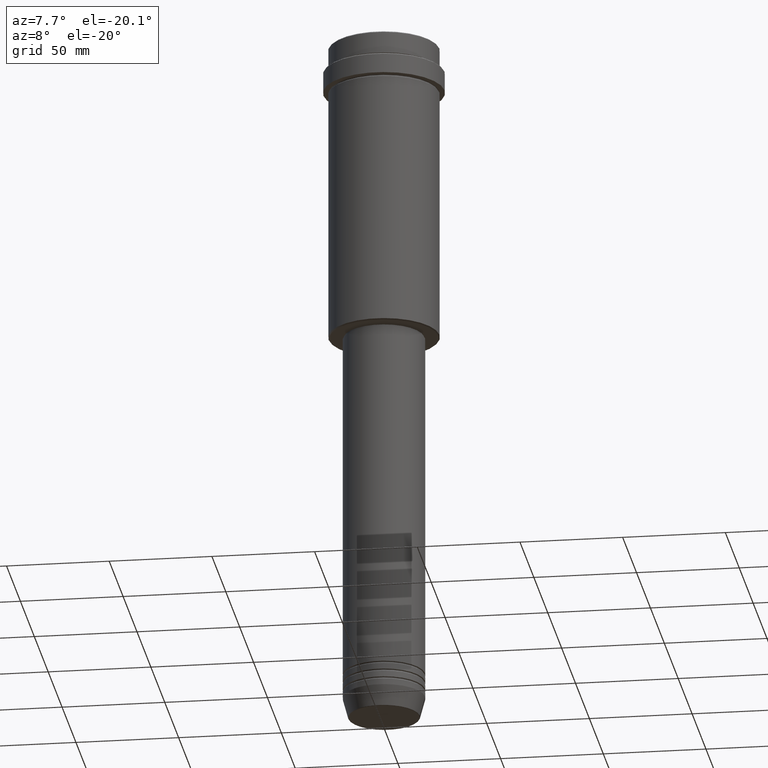
[diagram: clean part render]
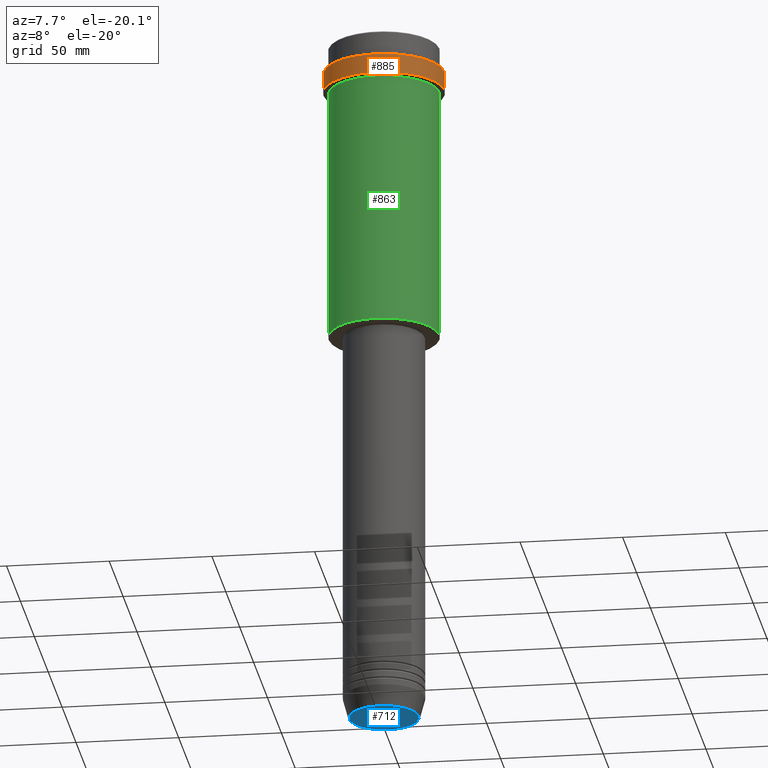
[diagram: same view with three faces highlighted in distinct colors, each labeled with its STEP entity id]
A machine part, auxiliary view with three faces highlighted in distinct colors.
Their STEP definitions:

[orange] entity #885 — the highlighted cylindrical surface (partial cylindrical patch) has radius 29.5 mm, axis along (-0, -0, 1).
#50 = DIRECTION ( 'NONE',  ( 1.000000000000000000, 0.000000000000000000, 0.000000000000000000 ) ) ;
#56 = CARTESIAN_POINT ( 'NONE',  ( 29.50000000000000000, 0.000000000000000000, -12.50000000000000355 ) ) ;
#59 = VECTOR ( 'NONE', #256, 1000.000000000000000 ) ;
#125 = CARTESIAN_POINT ( 'NONE',  ( -29.49999999999999645, 3.612708057484690815E-15, -22.00000000000000711 ) ) ;
#145 = LINE ( 'NONE', #1039, #59 ) ;
#169 = EDGE_LOOP ( 'NONE', ( #584, #867, #625, #930 ) ) ;
#199 = EDGE_CURVE ( 'NONE', #392, #777, #992, .T. ) ;
#212 = AXIS2_PLACEMENT_3D ( 'NONE', #908, #463, #1056 ) ;
#223 = CARTESIAN_POINT ( 'NONE',  ( -29.50000000000000000, 3.612708057484691604E-15, -12.50000000000000355 ) ) ;
#256 = DIRECTION ( 'NONE',  ( -0.000000000000000000, -0.000000000000000000, 1.000000000000000000 ) ) ;
#259 = CYLINDRICAL_SURFACE ( 'NONE', #381, 29.50000000000000000 ) ;
#284 = EDGE_CURVE ( 'NONE', #804, #379, #145, .T. ) ;
#318 = CARTESIAN_POINT ( 'NONE',  ( 29.49999999999999645, 0.000000000000000000, -22.00000000000000711 ) ) ;
#379 = VERTEX_POINT ( 'NONE', #223 ) ;
#381 = AXIS2_PLACEMENT_3D ( 'NONE', #701, #659, #624 ) ;
#392 = VERTEX_POINT ( 'NONE', #318 ) ;
#404 = CARTESIAN_POINT ( 'NONE',  ( 29.50000000000000000, 0.000000000000000000, 0.000000000000000000 ) ) ;
#463 = DIRECTION ( 'NONE',  ( -0.000000000000000000, -0.000000000000000000, 1.000000000000000000 ) ) ;
#522 = CIRCLE ( 'NONE', #212, 29.49999999999999645 ) ;
#577 = FACE_OUTER_BOUND ( 'NONE', #169, .T. ) ;
#584 = ORIENTED_EDGE ( 'NONE', *, *, #284, .F. ) ;
#624 = DIRECTION ( 'NONE',  ( 1.000000000000000000, 0.000000000000000000, 0.000000000000000000 ) ) ;
#625 = ORIENTED_EDGE ( 'NONE', *, *, #199, .T. ) ;
#659 = DIRECTION ( 'NONE',  ( -0.000000000000000000, -0.000000000000000000, 1.000000000000000000 ) ) ;
#670 = EDGE_CURVE ( 'NONE', #777, #379, #918, .T. ) ;
#687 = AXIS2_PLACEMENT_3D ( 'NONE', #1027, #915, #50 ) ;
#701 = CARTESIAN_POINT ( 'NONE',  ( 0.000000000000000000, 0.000000000000000000, 0.000000000000000000 ) ) ;
#777 = VERTEX_POINT ( 'NONE', #56 ) ;
#784 = VECTOR ( 'NONE', #960, 1000.000000000000000 ) ;
#804 = VERTEX_POINT ( 'NONE', #125 ) ;
#867 = ORIENTED_EDGE ( 'NONE', *, *, #1323, .T. ) ;
#885 = ADVANCED_FACE ( 'NONE', ( #577 ), #259, .T. ) ;
#908 = CARTESIAN_POINT ( 'NONE',  ( 0.000000000000000000, 0.000000000000000000, -22.00000000000000711 ) ) ;
#915 = DIRECTION ( 'NONE',  ( 0.000000000000000000, 0.000000000000000000, -1.000000000000000000 ) ) ;
#918 = CIRCLE ( 'NONE', #687, 29.50000000000000000 ) ;
#930 = ORIENTED_EDGE ( 'NONE', *, *, #670, .T. ) ;
#960 = DIRECTION ( 'NONE',  ( -0.000000000000000000, -0.000000000000000000, 1.000000000000000000 ) ) ;
#992 = LINE ( 'NONE', #404, #784 ) ;
#1027 = CARTESIAN_POINT ( 'NONE',  ( 0.000000000000000000, 0.000000000000000000, -12.50000000000000355 ) ) ;
#1039 = CARTESIAN_POINT ( 'NONE',  ( -29.50000000000000000, 3.612708057484691604E-15, 0.000000000000000000 ) ) ;
#1056 = DIRECTION ( 'NONE',  ( 1.000000000000000000, 0.000000000000000000, 0.000000000000000000 ) ) ;
#1323 = EDGE_CURVE ( 'NONE', #804, #392, #522, .T. ) ;

[blue] entity #712 — the highlighted planar face has unit normal (0, -0, 1).
#73 = VERTEX_POINT ( 'NONE', #692 ) ;
#97 = FACE_OUTER_BOUND ( 'NONE', #1052, .T. ) ;
#132 = DIRECTION ( 'NONE',  ( 1.000000000000000000, 0.000000000000000000, 0.000000000000000000 ) ) ;
#151 = CARTESIAN_POINT ( 'NONE',  ( 0.000000000000000000, 0.000000000000000000, -343.0000000000000000 ) ) ;
#158 = DIRECTION ( 'NONE',  ( 0.000000000000000000, -0.000000000000000000, 1.000000000000000000 ) ) ;
#239 = DIRECTION ( 'NONE',  ( 0.000000000000000000, 0.000000000000000000, -1.000000000000000000 ) ) ;
#525 = ORIENTED_EDGE ( 'NONE', *, *, #1017, .T. ) ;
#537 = CARTESIAN_POINT ( 'NONE',  ( 0.000000000000000000, 0.000000000000000000, -343.0000000000000000 ) ) ;
#567 = AXIS2_PLACEMENT_3D ( 'NONE', #537, #239, #132 ) ;
#689 = AXIS2_PLACEMENT_3D ( 'NONE', #151, #158, #923 ) ;
#692 = CARTESIAN_POINT ( 'NONE',  ( 16.93684458169928675, 0.000000000000000000, -343.0000000000000000 ) ) ;
#712 = ADVANCED_FACE ( 'NONE', ( #97 ), #910, .F. ) ;
#732 = DIRECTION ( 'NONE',  ( 0.000000000000000000, 0.000000000000000000, -1.000000000000000000 ) ) ;
#757 = ORIENTED_EDGE ( 'NONE', *, *, #1156, .T. ) ;
#790 = CIRCLE ( 'NONE', #1094, 16.93684458169928675 ) ;
#910 = PLANE ( 'NONE',  #689 ) ;
#923 = DIRECTION ( 'NONE',  ( 1.000000000000000000, 0.000000000000000000, 0.000000000000000000 ) ) ;
#1017 = EDGE_CURVE ( 'NONE', #1414, #73, #790, .T. ) ;
#1052 = EDGE_LOOP ( 'NONE', ( #757, #525 ) ) ;
#1094 = AXIS2_PLACEMENT_3D ( 'NONE', #1395, #732, #1175 ) ;
#1114 = CIRCLE ( 'NONE', #567, 16.93684458169928675 ) ;
#1156 = EDGE_CURVE ( 'NONE', #73, #1414, #1114, .T. ) ;
#1175 = DIRECTION ( 'NONE',  ( 1.000000000000000000, 0.000000000000000000, 0.000000000000000000 ) ) ;
#1289 = CARTESIAN_POINT ( 'NONE',  ( -16.93684458169928675, 2.103738199747889592E-15, -343.0000000000000000 ) ) ;
#1395 = CARTESIAN_POINT ( 'NONE',  ( 0.000000000000000000, 0.000000000000000000, -343.0000000000000000 ) ) ;
#1414 = VERTEX_POINT ( 'NONE', #1289 ) ;

[green] entity #863 — the highlighted cylindrical surface (partial cylindrical patch) has radius 27 mm, axis along (-0, -0, 1).
#25 = DIRECTION ( 'NONE',  ( -0.000000000000000000, -0.000000000000000000, 1.000000000000000000 ) ) ;
#39 = EDGE_CURVE ( 'NONE', #1341, #173, #674, .T. ) ;
#46 = EDGE_CURVE ( 'NONE', #173, #880, #161, .T. ) ;
#87 = CIRCLE ( 'NONE', #845, 27.00000000000000355 ) ;
#113 = EDGE_CURVE ( 'NONE', #1341, #538, #87, .T. ) ;
#161 = CIRCLE ( 'NONE', #225, 27.00000000000000355 ) ;
#173 = VERTEX_POINT ( 'NONE', #479 ) ;
#181 = ORIENTED_EDGE ( 'NONE', *, *, #113, .T. ) ;
#225 = AXIS2_PLACEMENT_3D ( 'NONE', #576, #1231, #809 ) ;
#291 = DIRECTION ( 'NONE',  ( -1.000000000000000000, 0.000000000000000000, 0.000000000000000000 ) ) ;
#344 = LINE ( 'NONE', #1254, #382 ) ;
#382 = VECTOR ( 'NONE', #1006, 1000.000000000000000 ) ;
#395 = CARTESIAN_POINT ( 'NONE',  ( 0.000000000000000000, 0.000000000000000000, -147.5000000000000284 ) ) ;
#421 = CARTESIAN_POINT ( 'NONE',  ( -27.00000000000000355, 3.306546357697854128E-15, -147.5000000000000284 ) ) ;
#479 = CARTESIAN_POINT ( 'NONE',  ( -27.00000000000000355, 3.306546357697854128E-15, -23.00000000000001421 ) ) ;
#494 = CARTESIAN_POINT ( 'NONE',  ( 27.00000000000000355, 0.000000000000000000, -23.00000000000001421 ) ) ;
#538 = VERTEX_POINT ( 'NONE', #755 ) ;
#554 = CARTESIAN_POINT ( 'NONE',  ( -27.00000000000000355, 3.306546357697854128E-15, 0.000000000000000000 ) ) ;
#576 = CARTESIAN_POINT ( 'NONE',  ( 0.000000000000000000, 0.000000000000000000, -23.00000000000001421 ) ) ;
#603 = DIRECTION ( 'NONE',  ( 1.000000000000000000, 0.000000000000000000, 0.000000000000000000 ) ) ;
#619 = ORIENTED_EDGE ( 'NONE', *, *, #39, .F. ) ;
#667 = FACE_OUTER_BOUND ( 'NONE', #982, .T. ) ;
#674 = LINE ( 'NONE', #554, #964 ) ;
#755 = CARTESIAN_POINT ( 'NONE',  ( 27.00000000000000355, 0.000000000000000000, -147.5000000000000284 ) ) ;
#776 = CARTESIAN_POINT ( 'NONE',  ( 0.000000000000000000, 0.000000000000000000, 0.000000000000000000 ) ) ;
#809 = DIRECTION ( 'NONE',  ( 1.000000000000000000, 0.000000000000000000, 0.000000000000000000 ) ) ;
#816 = EDGE_CURVE ( 'NONE', #538, #880, #344, .T. ) ;
#845 = AXIS2_PLACEMENT_3D ( 'NONE', #395, #953, #291 ) ;
#863 = ADVANCED_FACE ( 'NONE', ( #667 ), #1130, .T. ) ;
#880 = VERTEX_POINT ( 'NONE', #494 ) ;
#953 = DIRECTION ( 'NONE',  ( -0.000000000000000000, -0.000000000000000000, 1.000000000000000000 ) ) ;
#964 = VECTOR ( 'NONE', #25, 1000.000000000000000 ) ;
#982 = EDGE_LOOP ( 'NONE', ( #619, #181, #1166, #1092 ) ) ;
#1006 = DIRECTION ( 'NONE',  ( -0.000000000000000000, -0.000000000000000000, 1.000000000000000000 ) ) ;
#1092 = ORIENTED_EDGE ( 'NONE', *, *, #46, .F. ) ;
#1130 = CYLINDRICAL_SURFACE ( 'NONE', #1269, 27.00000000000000355 ) ;
#1166 = ORIENTED_EDGE ( 'NONE', *, *, #816, .T. ) ;
#1231 = DIRECTION ( 'NONE',  ( -0.000000000000000000, -0.000000000000000000, 1.000000000000000000 ) ) ;
#1254 = CARTESIAN_POINT ( 'NONE',  ( 27.00000000000000355, 0.000000000000000000, 0.000000000000000000 ) ) ;
#1269 = AXIS2_PLACEMENT_3D ( 'NONE', #776, #1389, #603 ) ;
#1341 = VERTEX_POINT ( 'NONE', #421 ) ;
#1389 = DIRECTION ( 'NONE',  ( -0.000000000000000000, -0.000000000000000000, 1.000000000000000000 ) ) ;